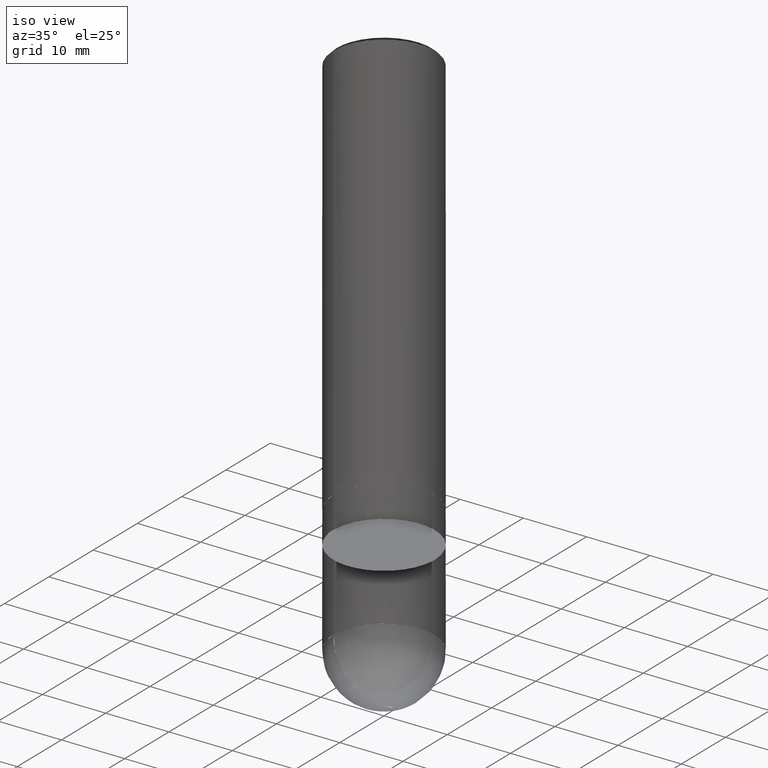
[diagram: clean part render]
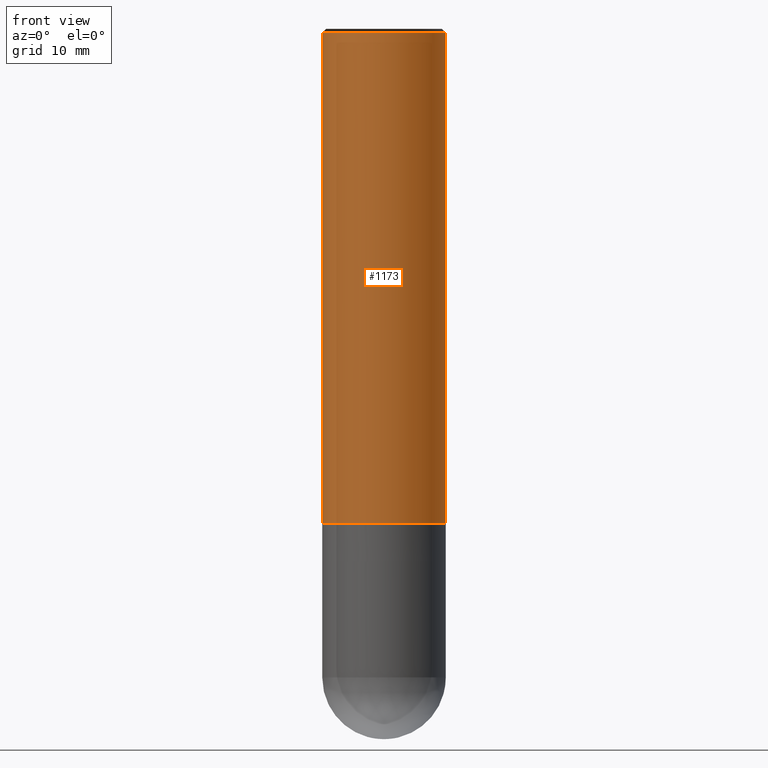
[diagram: tour spotlight — one face highlighted and labeled with its STEP entity id]
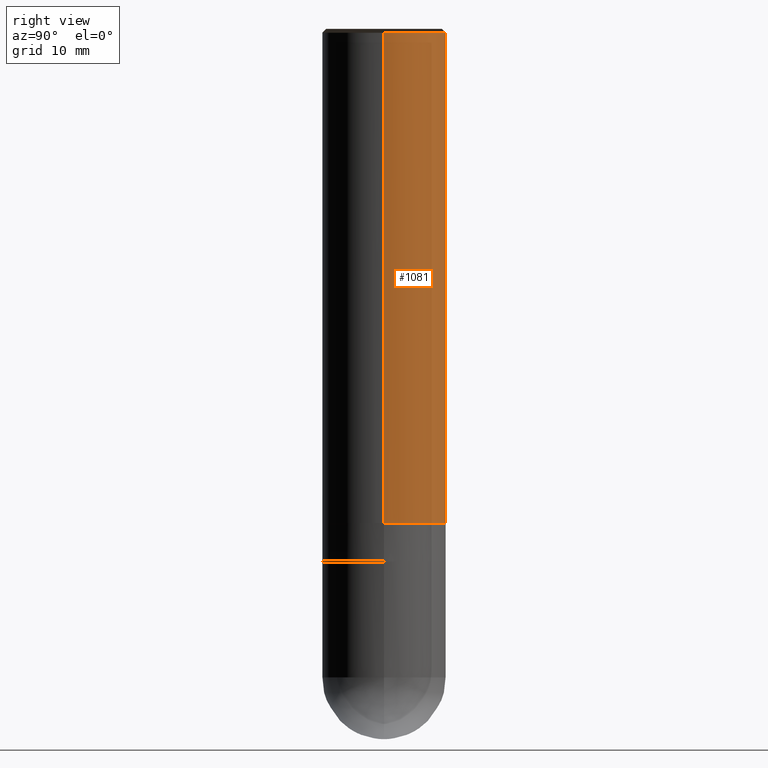
[diagram: tour spotlight — one face highlighted and labeled with its STEP entity id]
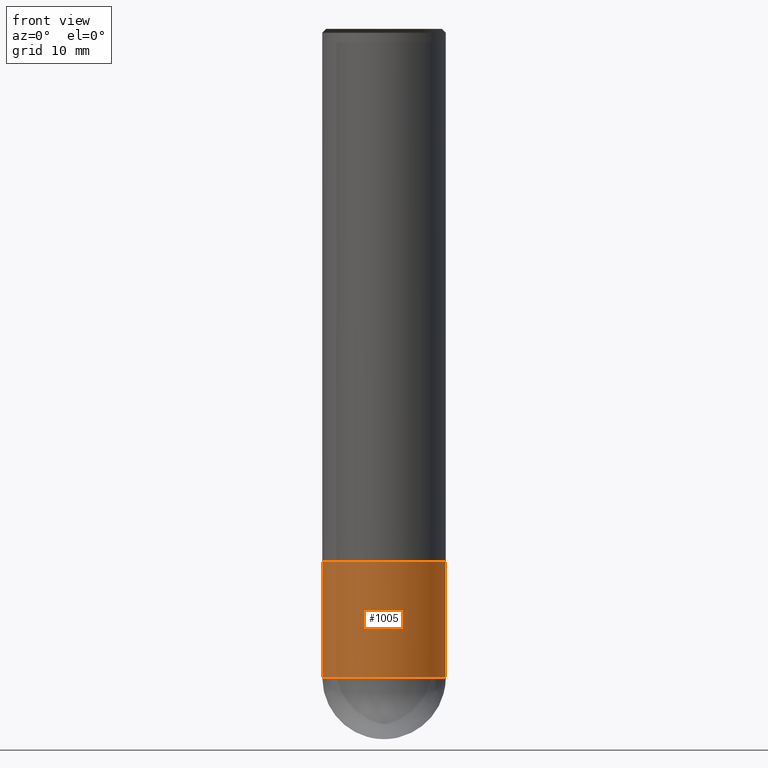
[diagram: tour spotlight — one face highlighted and labeled with its STEP entity id]
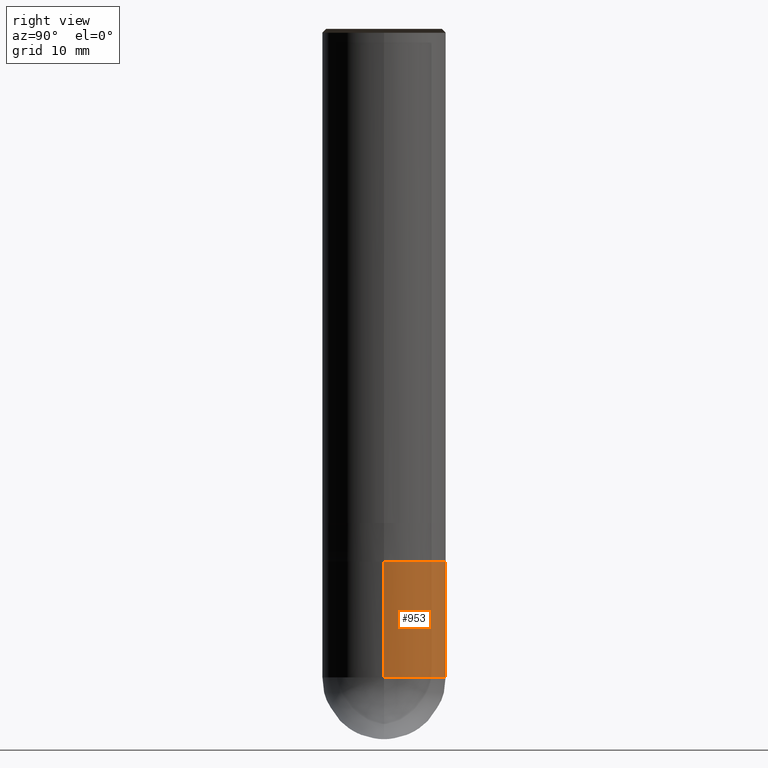
[diagram: tour spotlight — one face highlighted and labeled with its STEP entity id]
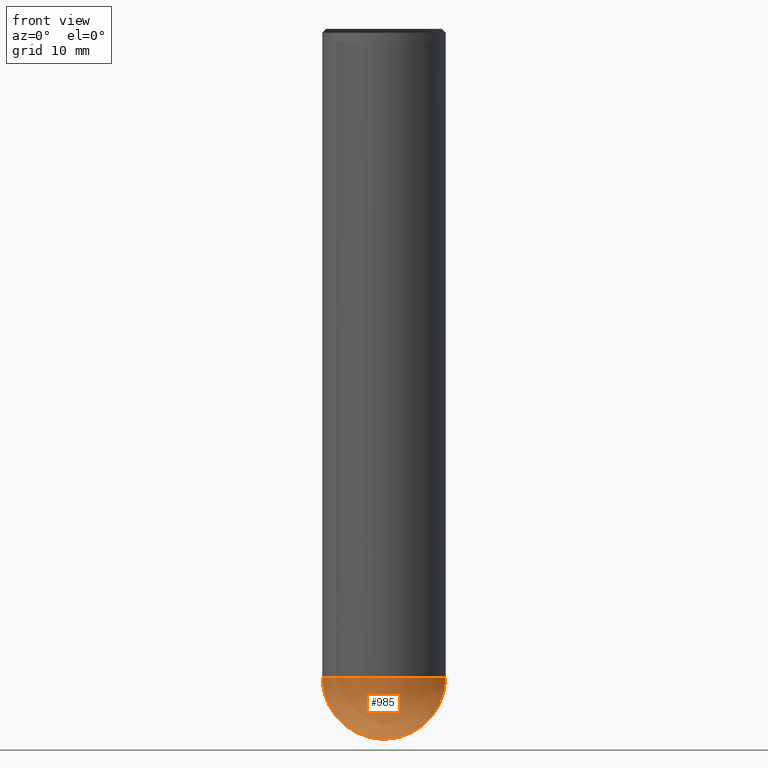
[diagram: tour spotlight — one face highlighted and labeled with its STEP entity id]
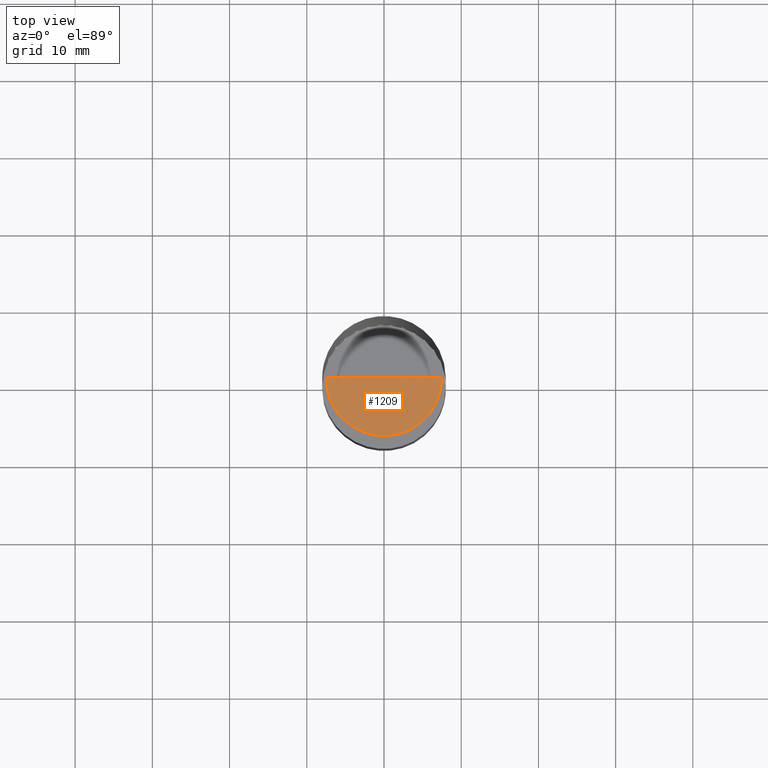
[diagram: tour spotlight — one face highlighted and labeled with its STEP entity id]
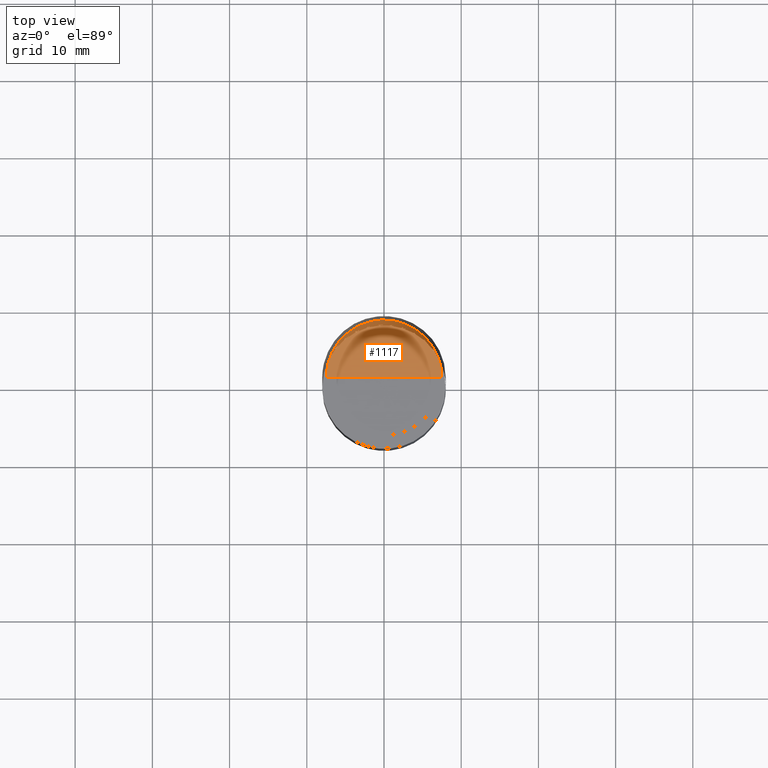
[diagram: tour spotlight — one face highlighted and labeled with its STEP entity id]
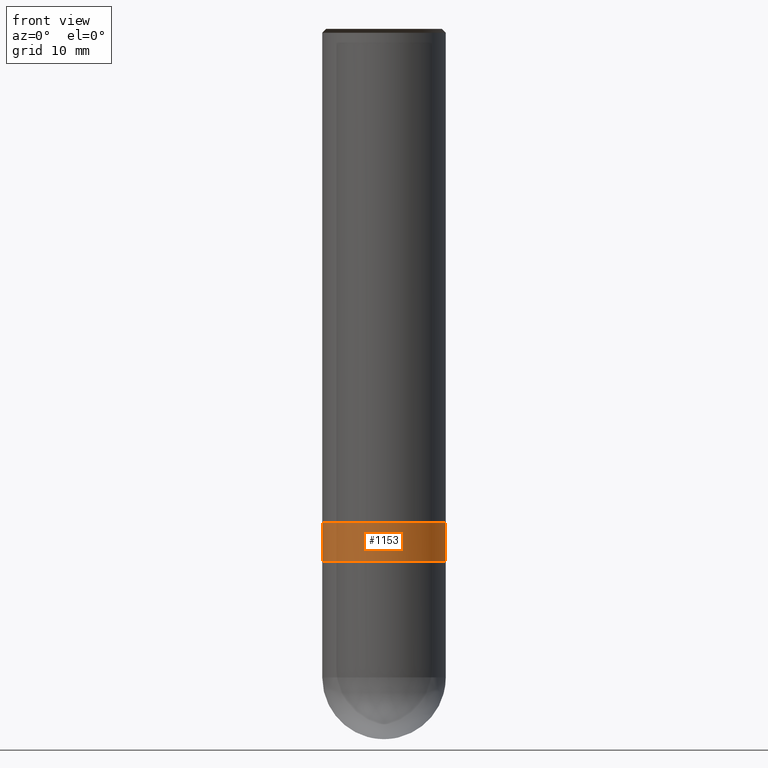
[diagram: tour spotlight — one face highlighted and labeled with its STEP entity id]
A machine part: a face-by-face anatomy tour. The part has 16 B-rep faces; the first image is the clean iso view, then the 8 largest visible faces are spotlighted one at a time (largest first), each with its STEP entity span.

Face 1 — front view, entity #1173. In plain terms, the highlighted face is a freeform B-spline surface patch.
Definition (entity closure, byte-faithful):
#886=CARTESIAN_POINT('',(8.0,0.0,0.0));
#890=CARTESIAN_POINT('',(-8.0,0.0,0.0));
#891=CARTESIAN_POINT('',(8.0,0.0,63.5));
#895=CARTESIAN_POINT('',(-8.0,0.0,63.5));
#902=CARTESIAN_POINT('',(-8.0,-8.0,0.0));
#903=CARTESIAN_POINT('',(0.0,-8.0,0.0));
#904=CARTESIAN_POINT('',(8.0,-8.0,0.0));
#905=CARTESIAN_POINT('',(-8.0,-8.0,63.5));
#906=CARTESIAN_POINT('',(0.0,-8.0,63.5));
#907=CARTESIAN_POINT('',(8.0,-8.0,63.5));
#1154=(
BOUNDED_SURFACE()
B_SPLINE_SURFACE(1,2,(
(#890,#902,#903,#904,#886),
(#895,#905,#906,#907,#891)
), .UNSPECIFIED.,.F.,.F.,.F.)
B_SPLINE_SURFACE_WITH_KNOTS((2,2),(3,2,3),(
0.0,1.0),(
0.0,0.5,1.0), .UNSPECIFIED.)
GEOMETRIC_REPRESENTATION_ITEM()
RATIONAL_B_SPLINE_SURFACE(((1.0,0.707106781187,1.0,0.707106781187,1.0),
(1.0,0.707106781187,1.0,0.707106781187,1.0)
))
REPRESENTATION_ITEM('')
SURFACE()
);
#1155=(
BOUNDED_CURVE()
B_SPLINE_CURVE(2,(#886,#904,#903,#902,#890),.UNSPECIFIED.,.F.,.F.)
B_SPLINE_CURVE_WITH_KNOTS((3,2,3),
(0.0,0.5,1.0),.UNSPECIFIED.)
CURVE()
GEOMETRIC_REPRESENTATION_ITEM()
RATIONAL_B_SPLINE_CURVE((1.0,0.707106781187,1.0,0.707106781187,1.0))
REPRESENTATION_ITEM('')
);
#1156=(
BOUNDED_CURVE()
B_SPLINE_CURVE(1,(#890,#895),.UNSPECIFIED.,.F.,.F.)
B_SPLINE_CURVE_WITH_KNOTS((2,2),
(0.0,1.0),.UNSPECIFIED.)
CURVE()
GEOMETRIC_REPRESENTATION_ITEM()
RATIONAL_B_SPLINE_CURVE((1.0,1.0))
REPRESENTATION_ITEM('')
);
#1157=(
BOUNDED_CURVE()
B_SPLINE_CURVE(2,(#895,#905,#906,#907,#891),.UNSPECIFIED.,.F.,.F.)
B_SPLINE_CURVE_WITH_KNOTS((3,2,3),
(0.0,0.5,1.0),.UNSPECIFIED.)
CURVE()
GEOMETRIC_REPRESENTATION_ITEM()
RATIONAL_B_SPLINE_CURVE((1.0,0.707106781187,1.0,0.707106781187,1.0))
REPRESENTATION_ITEM('')
);
#1158=(
BOUNDED_CURVE()
B_SPLINE_CURVE(1,(#891,#886),.UNSPECIFIED.,.F.,.F.)
B_SPLINE_CURVE_WITH_KNOTS((2,2),
(0.0,1.0),.UNSPECIFIED.)
CURVE()
GEOMETRIC_REPRESENTATION_ITEM()
RATIONAL_B_SPLINE_CURVE((1.0,1.0))
REPRESENTATION_ITEM('')
);
#1159=VERTEX_POINT('',#886);
#1160=VERTEX_POINT('',#890);
#1161=VERTEX_POINT('',#891);
#1162=VERTEX_POINT('',#895);
#1163=EDGE_CURVE('',#1159,#1160,#1155,.T.);
#1164=EDGE_CURVE('',#1160,#1162,#1156,.T.);
#1165=EDGE_CURVE('',#1162,#1161,#1157,.T.);
#1166=EDGE_CURVE('',#1161,#1159,#1158,.T.);
#1167=ORIENTED_EDGE('',*,*,#1163,.T.);
#1168=ORIENTED_EDGE('',*,*,#1164,.T.);
#1169=ORIENTED_EDGE('',*,*,#1165,.T.);
#1170=ORIENTED_EDGE('',*,*,#1166,.T.);
#1171=EDGE_LOOP('',(#1167,#1168,#1169,#1170));
#1172=FACE_OUTER_BOUND('',#1171,.T.);
#1173=ADVANCED_FACE('',(#1172),#1154,.T.);

Face 2 — right view, entity #1081. In plain terms, the highlighted face is a freeform B-spline surface patch.
Definition (entity closure, byte-faithful):
#886=CARTESIAN_POINT('',(8.0,0.0,0.0));
#887=CARTESIAN_POINT('',(8.0,8.0,0.0));
#888=CARTESIAN_POINT('',(0.0,8.0,0.0));
#889=CARTESIAN_POINT('',(-8.0,8.0,0.0));
#890=CARTESIAN_POINT('',(-8.0,0.0,0.0));
#891=CARTESIAN_POINT('',(8.0,0.0,63.5));
#892=CARTESIAN_POINT('',(8.0,8.0,63.5));
#893=CARTESIAN_POINT('',(0.0,8.0,63.5));
#894=CARTESIAN_POINT('',(-8.0,8.0,63.5));
#895=CARTESIAN_POINT('',(-8.0,0.0,63.5));
#1062=(
BOUNDED_SURFACE()
B_SPLINE_SURFACE(1,2,(
(#886,#887,#888,#889,#890),
(#891,#892,#893,#894,#895)
), .UNSPECIFIED.,.F.,.F.,.F.)
B_SPLINE_SURFACE_WITH_KNOTS((2,2),(3,2,3),(
0.0,1.0),(
0.0,0.5,1.0), .UNSPECIFIED.)
GEOMETRIC_REPRESENTATION_ITEM()
RATIONAL_B_SPLINE_SURFACE(((1.0,0.707106781187,1.0,0.707106781187,1.0),
(1.0,0.707106781187,1.0,0.707106781187,1.0)
))
REPRESENTATION_ITEM('')
SURFACE()
);
#1063=(
BOUNDED_CURVE()
B_SPLINE_CURVE(2,(#890,#889,#888,#887,#886),.UNSPECIFIED.,.F.,.F.)
B_SPLINE_CURVE_WITH_KNOTS((3,2,3),
(0.0,0.5,1.0),.UNSPECIFIED.)
CURVE()
GEOMETRIC_REPRESENTATION_ITEM()
RATIONAL_B_SPLINE_CURVE((1.0,0.707106781187,1.0,0.707106781187,1.0))
REPRESENTATION_ITEM('')
);
#1064=(
BOUNDED_CURVE()
B_SPLINE_CURVE(1,(#886,#891),.UNSPECIFIED.,.F.,.F.)
B_SPLINE_CURVE_WITH_KNOTS((2,2),
(0.0,1.0),.UNSPECIFIED.)
CURVE()
GEOMETRIC_REPRESENTATION_ITEM()
RATIONAL_B_SPLINE_CURVE((1.0,1.0))
REPRESENTATION_ITEM('')
);
#1065=(
BOUNDED_CURVE()
B_SPLINE_CURVE(2,(#891,#892,#893,#894,#895),.UNSPECIFIED.,.F.,.F.)
B_SPLINE_CURVE_WITH_KNOTS((3,2,3),
(0.0,0.5,1.0),.UNSPECIFIED.)
CURVE()
GEOMETRIC_REPRESENTATION_ITEM()
RATIONAL_B_SPLINE_CURVE((1.0,0.707106781187,1.0,0.707106781187,1.0))
REPRESENTATION_ITEM('')
);
#1066=(
BOUNDED_CURVE()
B_SPLINE_CURVE(1,(#895,#890),.UNSPECIFIED.,.F.,.F.)
B_SPLINE_CURVE_WITH_KNOTS((2,2),
(0.0,1.0),.UNSPECIFIED.)
CURVE()
GEOMETRIC_REPRESENTATION_ITEM()
RATIONAL_B_SPLINE_CURVE((1.0,1.0))
REPRESENTATION_ITEM('')
);
#1067=VERTEX_POINT('',#886);
#1068=VERTEX_POINT('',#890);
#1069=VERTEX_POINT('',#891);
#1070=VERTEX_POINT('',#895);
#1071=EDGE_CURVE('',#1068,#1067,#1063,.T.);
#1072=EDGE_CURVE('',#1067,#1069,#1064,.T.);
#1073=EDGE_CURVE('',#1069,#1070,#1065,.T.);
#1074=EDGE_CURVE('',#1070,#1068,#1066,.T.);
#1075=ORIENTED_EDGE('',*,*,#1071,.T.);
#1076=ORIENTED_EDGE('',*,*,#1072,.T.);
#1077=ORIENTED_EDGE('',*,*,#1073,.T.);
#1078=ORIENTED_EDGE('',*,*,#1074,.T.);
#1079=EDGE_LOOP('',(#1075,#1076,#1077,#1078));
#1080=FACE_OUTER_BOUND('',#1079,.T.);
#1081=ADVANCED_FACE('',(#1080),#1062,.T.);

Face 3 — front view, entity #1005. In plain terms, the highlighted face is a freeform B-spline surface patch.
Definition (entity closure, byte-faithful):
#866=CARTESIAN_POINT('',(8.0,0.0,-20.0));
#870=CARTESIAN_POINT('',(-8.0,0.0,-20.0));
#871=CARTESIAN_POINT('',(8.0,0.0,-5.0));
#875=CARTESIAN_POINT('',(-8.0,0.0,-5.0));
#880=CARTESIAN_POINT('',(-8.0,-8.0,-20.0));
#881=CARTESIAN_POINT('',(0.0,-8.0,-20.0));
#882=CARTESIAN_POINT('',(8.0,-8.0,-20.0));
#883=CARTESIAN_POINT('',(-8.0,-8.0,-5.0));
#884=CARTESIAN_POINT('',(0.0,-8.0,-5.0));
#885=CARTESIAN_POINT('',(8.0,-8.0,-5.0));
#986=(
BOUNDED_SURFACE()
B_SPLINE_SURFACE(1,2,(
(#870,#880,#881,#882,#866),
(#875,#883,#884,#885,#871)
), .UNSPECIFIED.,.F.,.F.,.F.)
B_SPLINE_SURFACE_WITH_KNOTS((2,2),(3,2,3),(
0.0,1.0),(
0.0,0.5,1.0), .UNSPECIFIED.)
GEOMETRIC_REPRESENTATION_ITEM()
RATIONAL_B_SPLINE_SURFACE(((1.0,0.707106781187,1.0,0.707106781187,1.0),
(1.0,0.707106781187,1.0,0.707106781187,1.0)
))
REPRESENTATION_ITEM('')
SURFACE()
);
#987=(
BOUNDED_CURVE()
B_SPLINE_CURVE(2,(#866,#882,#881,#880,#870),.UNSPECIFIED.,.F.,.F.)
B_SPLINE_CURVE_WITH_KNOTS((3,2,3),
(0.0,0.5,1.0),.UNSPECIFIED.)
CURVE()
GEOMETRIC_REPRESENTATION_ITEM()
RATIONAL_B_SPLINE_CURVE((1.0,0.707106781187,1.0,0.707106781187,1.0))
REPRESENTATION_ITEM('')
);
#988=(
BOUNDED_CURVE()
B_SPLINE_CURVE(1,(#870,#875),.UNSPECIFIED.,.F.,.F.)
B_SPLINE_CURVE_WITH_KNOTS((2,2),
(0.0,1.0),.UNSPECIFIED.)
CURVE()
GEOMETRIC_REPRESENTATION_ITEM()
RATIONAL_B_SPLINE_CURVE((1.0,1.0))
REPRESENTATION_ITEM('')
);
#989=(
BOUNDED_CURVE()
B_SPLINE_CURVE(2,(#875,#883,#884,#885,#871),.UNSPECIFIED.,.F.,.F.)
B_SPLINE_CURVE_WITH_KNOTS((3,2,3),
(0.0,0.5,1.0),.UNSPECIFIED.)
CURVE()
GEOMETRIC_REPRESENTATION_ITEM()
RATIONAL_B_SPLINE_CURVE((1.0,0.707106781187,1.0,0.707106781187,1.0))
REPRESENTATION_ITEM('')
);
#990=(
BOUNDED_CURVE()
B_SPLINE_CURVE(1,(#871,#866),.UNSPECIFIED.,.F.,.F.)
B_SPLINE_CURVE_WITH_KNOTS((2,2),
(0.0,1.0),.UNSPECIFIED.)
CURVE()
GEOMETRIC_REPRESENTATION_ITEM()
RATIONAL_B_SPLINE_CURVE((1.0,1.0))
REPRESENTATION_ITEM('')
);
#991=VERTEX_POINT('',#866);
#992=VERTEX_POINT('',#870);
#993=VERTEX_POINT('',#871);
#994=VERTEX_POINT('',#875);
#995=EDGE_CURVE('',#991,#992,#987,.T.);
#996=EDGE_CURVE('',#992,#994,#988,.T.);
#997=EDGE_CURVE('',#994,#993,#989,.T.);
#998=EDGE_CURVE('',#993,#991,#990,.T.);
#999=ORIENTED_EDGE('',*,*,#995,.T.);
#1000=ORIENTED_EDGE('',*,*,#996,.T.);
#1001=ORIENTED_EDGE('',*,*,#997,.T.);
#1002=ORIENTED_EDGE('',*,*,#998,.T.);
#1003=EDGE_LOOP('',(#999,#1000,#1001,#1002));
#1004=FACE_OUTER_BOUND('',#1003,.T.);
#1005=ADVANCED_FACE('',(#1004),#986,.T.);

Face 4 — right view, entity #953. In plain terms, the highlighted face is a freeform B-spline surface patch.
Definition (entity closure, byte-faithful):
#866=CARTESIAN_POINT('',(8.0,0.0,-20.0));
#867=CARTESIAN_POINT('',(8.0,8.0,-20.0));
#868=CARTESIAN_POINT('',(0.0,8.0,-20.0));
#869=CARTESIAN_POINT('',(-8.0,8.0,-20.0));
#870=CARTESIAN_POINT('',(-8.0,0.0,-20.0));
#871=CARTESIAN_POINT('',(8.0,0.0,-5.0));
#872=CARTESIAN_POINT('',(8.0,8.0,-5.0));
#873=CARTESIAN_POINT('',(0.0,8.0,-5.0));
#874=CARTESIAN_POINT('',(-8.0,8.0,-5.0));
#875=CARTESIAN_POINT('',(-8.0,0.0,-5.0));
#934=(
BOUNDED_SURFACE()
B_SPLINE_SURFACE(1,2,(
(#866,#867,#868,#869,#870),
(#871,#872,#873,#874,#875)
), .UNSPECIFIED.,.F.,.F.,.F.)
B_SPLINE_SURFACE_WITH_KNOTS((2,2),(3,2,3),(
0.0,1.0),(
0.0,0.5,1.0), .UNSPECIFIED.)
GEOMETRIC_REPRESENTATION_ITEM()
RATIONAL_B_SPLINE_SURFACE(((1.0,0.707106781187,1.0,0.707106781187,1.0),
(1.0,0.707106781187,1.0,0.707106781187,1.0)
))
REPRESENTATION_ITEM('')
SURFACE()
);
#935=(
BOUNDED_CURVE()
B_SPLINE_CURVE(2,(#870,#869,#868,#867,#866),.UNSPECIFIED.,.F.,.F.)
B_SPLINE_CURVE_WITH_KNOTS((3,2,3),
(0.0,0.5,1.0),.UNSPECIFIED.)
CURVE()
GEOMETRIC_REPRESENTATION_ITEM()
RATIONAL_B_SPLINE_CURVE((1.0,0.707106781187,1.0,0.707106781187,1.0))
REPRESENTATION_ITEM('')
);
#936=(
BOUNDED_CURVE()
B_SPLINE_CURVE(1,(#866,#871),.UNSPECIFIED.,.F.,.F.)
B_SPLINE_CURVE_WITH_KNOTS((2,2),
(0.0,1.0),.UNSPECIFIED.)
CURVE()
GEOMETRIC_REPRESENTATION_ITEM()
RATIONAL_B_SPLINE_CURVE((1.0,1.0))
REPRESENTATION_ITEM('')
);
#937=(
BOUNDED_CURVE()
B_SPLINE_CURVE(2,(#871,#872,#873,#874,#875),.UNSPECIFIED.,.F.,.F.)
B_SPLINE_CURVE_WITH_KNOTS((3,2,3),
(0.0,0.5,1.0),.UNSPECIFIED.)
CURVE()
GEOMETRIC_REPRESENTATION_ITEM()
RATIONAL_B_SPLINE_CURVE((1.0,0.707106781187,1.0,0.707106781187,1.0))
REPRESENTATION_ITEM('')
);
#938=(
BOUNDED_CURVE()
B_SPLINE_CURVE(1,(#875,#870),.UNSPECIFIED.,.F.,.F.)
B_SPLINE_CURVE_WITH_KNOTS((2,2),
(0.0,1.0),.UNSPECIFIED.)
CURVE()
GEOMETRIC_REPRESENTATION_ITEM()
RATIONAL_B_SPLINE_CURVE((1.0,1.0))
REPRESENTATION_ITEM('')
);
#939=VERTEX_POINT('',#866);
#940=VERTEX_POINT('',#870);
#941=VERTEX_POINT('',#871);
#942=VERTEX_POINT('',#875);
#943=EDGE_CURVE('',#940,#939,#935,.T.);
#944=EDGE_CURVE('',#939,#941,#936,.T.);
#945=EDGE_CURVE('',#941,#942,#937,.T.);
#946=EDGE_CURVE('',#942,#940,#938,.T.);
#947=ORIENTED_EDGE('',*,*,#943,.T.);
#948=ORIENTED_EDGE('',*,*,#944,.T.);
#949=ORIENTED_EDGE('',*,*,#945,.T.);
#950=ORIENTED_EDGE('',*,*,#946,.T.);
#951=EDGE_LOOP('',(#947,#948,#949,#950));
#952=FACE_OUTER_BOUND('',#951,.T.);
#953=ADVANCED_FACE('',(#952),#934,.T.);

Face 5 — front view, entity #985. In plain terms, the highlighted face is a freeform B-spline surface patch.
Definition (entity closure, byte-faithful):
#860=CARTESIAN_POINT('',(0.0,0.0,-28.0));
#861=CARTESIAN_POINT('',(8.0,0.0,-28.0));
#865=CARTESIAN_POINT('',(-8.0,0.0,-28.0));
#866=CARTESIAN_POINT('',(8.0,0.0,-20.0));
#870=CARTESIAN_POINT('',(-8.0,0.0,-20.0));
#877=CARTESIAN_POINT('',(-8.0,-8.0,-28.0));
#878=CARTESIAN_POINT('',(0.0,-8.0,-28.0));
#879=CARTESIAN_POINT('',(8.0,-8.0,-28.0));
#880=CARTESIAN_POINT('',(-8.0,-8.0,-20.0));
#881=CARTESIAN_POINT('',(0.0,-8.0,-20.0));
#882=CARTESIAN_POINT('',(8.0,-8.0,-20.0));
#970=(
BOUNDED_SURFACE()
B_SPLINE_SURFACE(2,2,(
(#860,#860,#860,#860,#860),
(#865,#877,#878,#879,#861),
(#870,#880,#881,#882,#866)
), .UNSPECIFIED.,.F.,.F.,.F.)
B_SPLINE_SURFACE_WITH_KNOTS((3,3),(3,2,3),(
0.0,1.0),(
0.0,0.5,1.0), .UNSPECIFIED.)
GEOMETRIC_REPRESENTATION_ITEM()
RATIONAL_B_SPLINE_SURFACE(((1.0,0.707106781187,1.0,0.707106781187,1.0),
(0.707106781187,0.5,0.707106781187,0.5,0.707106781187),
(1.0,0.707106781187,1.0,0.707106781187,1.0)
))
REPRESENTATION_ITEM('')
SURFACE()
);
#971=(
BOUNDED_CURVE()
B_SPLINE_CURVE(2,(#866,#861,#860),.UNSPECIFIED.,.F.,.F.)
B_SPLINE_CURVE_WITH_KNOTS((3,3),
(0.0,1.0),.UNSPECIFIED.)
CURVE()
GEOMETRIC_REPRESENTATION_ITEM()
RATIONAL_B_SPLINE_CURVE((1.0,0.707106781187,1.0))
REPRESENTATION_ITEM('')
);
#972=(
BOUNDED_CURVE()
B_SPLINE_CURVE(2,(#860,#865,#870),.UNSPECIFIED.,.F.,.F.)
B_SPLINE_CURVE_WITH_KNOTS((3,3),
(0.0,1.0),.UNSPECIFIED.)
CURVE()
GEOMETRIC_REPRESENTATION_ITEM()
RATIONAL_B_SPLINE_CURVE((1.0,0.707106781187,1.0))
REPRESENTATION_ITEM('')
);
#973=(
BOUNDED_CURVE()
B_SPLINE_CURVE(2,(#870,#880,#881,#882,#866),.UNSPECIFIED.,.F.,.F.)
B_SPLINE_CURVE_WITH_KNOTS((3,2,3),
(0.0,0.5,1.0),.UNSPECIFIED.)
CURVE()
GEOMETRIC_REPRESENTATION_ITEM()
RATIONAL_B_SPLINE_CURVE((1.0,0.707106781187,1.0,0.707106781187,1.0))
REPRESENTATION_ITEM('')
);
#974=VERTEX_POINT('',#860);
#975=VERTEX_POINT('',#866);
#976=VERTEX_POINT('',#870);
#977=EDGE_CURVE('',#975,#974,#971,.T.);
#978=EDGE_CURVE('',#974,#976,#972,.T.);
#979=EDGE_CURVE('',#976,#975,#973,.T.);
#980=ORIENTED_EDGE('',*,*,#977,.T.);
#981=ORIENTED_EDGE('',*,*,#978,.T.);
#982=ORIENTED_EDGE('',*,*,#979,.T.);
#983=EDGE_LOOP('',(#980,#981,#982));
#984=FACE_OUTER_BOUND('',#983,.T.);
#985=ADVANCED_FACE('',(#984),#970,.T.);

Face 6 — top view, entity #1209. In plain terms, the highlighted face is a freeform B-spline surface patch.
Definition (entity closure, byte-faithful):
#896=CARTESIAN_POINT('',(7.5,0.0,64.0));
#900=CARTESIAN_POINT('',(-7.5,0.0,64.0));
#901=CARTESIAN_POINT('',(0.0,0.0,64.0));
#908=CARTESIAN_POINT('',(-7.5,-7.5,64.0));
#909=CARTESIAN_POINT('',(0.0,-7.5,64.0));
#910=CARTESIAN_POINT('',(7.5,-7.5,64.0));
#1194=(
BOUNDED_SURFACE()
B_SPLINE_SURFACE(1,2,(
(#900,#908,#909,#910,#896),
(#901,#901,#901,#901,#901)
), .UNSPECIFIED.,.F.,.F.,.F.)
B_SPLINE_SURFACE_WITH_KNOTS((2,2),(3,2,3),(
0.0,1.0),(
0.0,0.5,1.0), .UNSPECIFIED.)
GEOMETRIC_REPRESENTATION_ITEM()
RATIONAL_B_SPLINE_SURFACE(((1.0,0.707106781187,1.0,0.707106781187,1.0),
(1.0,0.707106781187,1.0,0.707106781187,1.0)
))
REPRESENTATION_ITEM('')
SURFACE()
);
#1195=(
BOUNDED_CURVE()
B_SPLINE_CURVE(2,(#896,#910,#909,#908,#900),.UNSPECIFIED.,.F.,.F.)
B_SPLINE_CURVE_WITH_KNOTS((3,2,3),
(0.0,0.5,1.0),.UNSPECIFIED.)
CURVE()
GEOMETRIC_REPRESENTATION_ITEM()
RATIONAL_B_SPLINE_CURVE((1.0,0.707106781187,1.0,0.707106781187,1.0))
REPRESENTATION_ITEM('')
);
#1196=(
BOUNDED_CURVE()
B_SPLINE_CURVE(1,(#900,#901),.UNSPECIFIED.,.F.,.F.)
B_SPLINE_CURVE_WITH_KNOTS((2,2),
(0.0,1.0),.UNSPECIFIED.)
CURVE()
GEOMETRIC_REPRESENTATION_ITEM()
RATIONAL_B_SPLINE_CURVE((1.0,1.0))
REPRESENTATION_ITEM('')
);
#1197=(
BOUNDED_CURVE()
B_SPLINE_CURVE(1,(#901,#896),.UNSPECIFIED.,.F.,.F.)
B_SPLINE_CURVE_WITH_KNOTS((2,2),
(0.0,1.0),.UNSPECIFIED.)
CURVE()
GEOMETRIC_REPRESENTATION_ITEM()
RATIONAL_B_SPLINE_CURVE((1.0,1.0))
REPRESENTATION_ITEM('')
);
#1198=VERTEX_POINT('',#896);
#1199=VERTEX_POINT('',#900);
#1200=VERTEX_POINT('',#901);
#1201=EDGE_CURVE('',#1198,#1199,#1195,.T.);
#1202=EDGE_CURVE('',#1199,#1200,#1196,.T.);
#1203=EDGE_CURVE('',#1200,#1198,#1197,.T.);
#1204=ORIENTED_EDGE('',*,*,#1201,.T.);
#1205=ORIENTED_EDGE('',*,*,#1202,.T.);
#1206=ORIENTED_EDGE('',*,*,#1203,.T.);
#1207=EDGE_LOOP('',(#1204,#1205,#1206));
#1208=FACE_OUTER_BOUND('',#1207,.T.);
#1209=ADVANCED_FACE('',(#1208),#1194,.T.);

Face 7 — top view, entity #1117. In plain terms, the highlighted face is a freeform B-spline surface patch.
Definition (entity closure, byte-faithful):
#896=CARTESIAN_POINT('',(7.5,0.0,64.0));
#897=CARTESIAN_POINT('',(7.5,7.5,64.0));
#898=CARTESIAN_POINT('',(0.0,7.5,64.0));
#899=CARTESIAN_POINT('',(-7.5,7.5,64.0));
#900=CARTESIAN_POINT('',(-7.5,0.0,64.0));
#901=CARTESIAN_POINT('',(0.0,0.0,64.0));
#1102=(
BOUNDED_SURFACE()
B_SPLINE_SURFACE(1,2,(
(#896,#897,#898,#899,#900),
(#901,#901,#901,#901,#901)
), .UNSPECIFIED.,.F.,.F.,.F.)
B_SPLINE_SURFACE_WITH_KNOTS((2,2),(3,2,3),(
0.0,1.0),(
0.0,0.5,1.0), .UNSPECIFIED.)
GEOMETRIC_REPRESENTATION_ITEM()
RATIONAL_B_SPLINE_SURFACE(((1.0,0.707106781187,1.0,0.707106781187,1.0),
(1.0,0.707106781187,1.0,0.707106781187,1.0)
))
REPRESENTATION_ITEM('')
SURFACE()
);
#1103=(
BOUNDED_CURVE()
B_SPLINE_CURVE(2,(#900,#899,#898,#897,#896),.UNSPECIFIED.,.F.,.F.)
B_SPLINE_CURVE_WITH_KNOTS((3,2,3),
(0.0,0.5,1.0),.UNSPECIFIED.)
CURVE()
GEOMETRIC_REPRESENTATION_ITEM()
RATIONAL_B_SPLINE_CURVE((1.0,0.707106781187,1.0,0.707106781187,1.0))
REPRESENTATION_ITEM('')
);
#1104=(
BOUNDED_CURVE()
B_SPLINE_CURVE(1,(#896,#901),.UNSPECIFIED.,.F.,.F.)
B_SPLINE_CURVE_WITH_KNOTS((2,2),
(0.0,1.0),.UNSPECIFIED.)
CURVE()
GEOMETRIC_REPRESENTATION_ITEM()
RATIONAL_B_SPLINE_CURVE((1.0,1.0))
REPRESENTATION_ITEM('')
);
#1105=(
BOUNDED_CURVE()
B_SPLINE_CURVE(1,(#901,#900),.UNSPECIFIED.,.F.,.F.)
B_SPLINE_CURVE_WITH_KNOTS((2,2),
(0.0,1.0),.UNSPECIFIED.)
CURVE()
GEOMETRIC_REPRESENTATION_ITEM()
RATIONAL_B_SPLINE_CURVE((1.0,1.0))
REPRESENTATION_ITEM('')
);
#1106=VERTEX_POINT('',#896);
#1107=VERTEX_POINT('',#900);
#1108=VERTEX_POINT('',#901);
#1109=EDGE_CURVE('',#1107,#1106,#1103,.T.);
#1110=EDGE_CURVE('',#1106,#1108,#1104,.T.);
#1111=EDGE_CURVE('',#1108,#1107,#1105,.T.);
#1112=ORIENTED_EDGE('',*,*,#1109,.T.);
#1113=ORIENTED_EDGE('',*,*,#1110,.T.);
#1114=ORIENTED_EDGE('',*,*,#1111,.T.);
#1115=EDGE_LOOP('',(#1112,#1113,#1114));
#1116=FACE_OUTER_BOUND('',#1115,.T.);
#1117=ADVANCED_FACE('',(#1116),#1102,.T.);

Face 8 — front view, entity #1153. In plain terms, the highlighted face is a freeform B-spline surface patch.
Definition (entity closure, byte-faithful):
#871=CARTESIAN_POINT('',(8.0,0.0,-5.0));
#875=CARTESIAN_POINT('',(-8.0,0.0,-5.0));
#883=CARTESIAN_POINT('',(-8.0,-8.0,-5.0));
#884=CARTESIAN_POINT('',(0.0,-8.0,-5.0));
#885=CARTESIAN_POINT('',(8.0,-8.0,-5.0));
#886=CARTESIAN_POINT('',(8.0,0.0,0.0));
#890=CARTESIAN_POINT('',(-8.0,0.0,0.0));
#902=CARTESIAN_POINT('',(-8.0,-8.0,0.0));
#903=CARTESIAN_POINT('',(0.0,-8.0,0.0));
#904=CARTESIAN_POINT('',(8.0,-8.0,0.0));
#1134=(
BOUNDED_SURFACE()
B_SPLINE_SURFACE(1,2,(
(#875,#883,#884,#885,#871),
(#890,#902,#903,#904,#886)
), .UNSPECIFIED.,.F.,.F.,.F.)
B_SPLINE_SURFACE_WITH_KNOTS((2,2),(3,2,3),(
0.0,1.0),(
0.0,0.5,1.0), .UNSPECIFIED.)
GEOMETRIC_REPRESENTATION_ITEM()
RATIONAL_B_SPLINE_SURFACE(((1.0,0.707106781187,1.0,0.707106781187,1.0),
(1.0,0.707106781187,1.0,0.707106781187,1.0)
))
REPRESENTATION_ITEM('')
SURFACE()
);
#1135=(
BOUNDED_CURVE()
B_SPLINE_CURVE(2,(#871,#885,#884,#883,#875),.UNSPECIFIED.,.F.,.F.)
B_SPLINE_CURVE_WITH_KNOTS((3,2,3),
(0.0,0.5,1.0),.UNSPECIFIED.)
CURVE()
GEOMETRIC_REPRESENTATION_ITEM()
RATIONAL_B_SPLINE_CURVE((1.0,0.707106781187,1.0,0.707106781187,1.0))
REPRESENTATION_ITEM('')
);
#1136=(
BOUNDED_CURVE()
B_SPLINE_CURVE(1,(#875,#890),.UNSPECIFIED.,.F.,.F.)
B_SPLINE_CURVE_WITH_KNOTS((2,2),
(0.0,1.0),.UNSPECIFIED.)
CURVE()
GEOMETRIC_REPRESENTATION_ITEM()
RATIONAL_B_SPLINE_CURVE((1.0,1.0))
REPRESENTATION_ITEM('')
);
#1137=(
BOUNDED_CURVE()
B_SPLINE_CURVE(2,(#890,#902,#903,#904,#886),.UNSPECIFIED.,.F.,.F.)
B_SPLINE_CURVE_WITH_KNOTS((3,2,3),
(0.0,0.5,1.0),.UNSPECIFIED.)
CURVE()
GEOMETRIC_REPRESENTATION_ITEM()
RATIONAL_B_SPLINE_CURVE((1.0,0.707106781187,1.0,0.707106781187,1.0))
REPRESENTATION_ITEM('')
);
#1138=(
BOUNDED_CURVE()
B_SPLINE_CURVE(1,(#886,#871),.UNSPECIFIED.,.F.,.F.)
B_SPLINE_CURVE_WITH_KNOTS((2,2),
(0.0,1.0),.UNSPECIFIED.)
CURVE()
GEOMETRIC_REPRESENTATION_ITEM()
RATIONAL_B_SPLINE_CURVE((1.0,1.0))
REPRESENTATION_ITEM('')
);
#1139=VERTEX_POINT('',#871);
#1140=VERTEX_POINT('',#875);
#1141=VERTEX_POINT('',#886);
#1142=VERTEX_POINT('',#890);
#1143=EDGE_CURVE('',#1139,#1140,#1135,.T.);
#1144=EDGE_CURVE('',#1140,#1142,#1136,.T.);
#1145=EDGE_CURVE('',#1142,#1141,#1137,.T.);
#1146=EDGE_CURVE('',#1141,#1139,#1138,.T.);
#1147=ORIENTED_EDGE('',*,*,#1143,.T.);
#1148=ORIENTED_EDGE('',*,*,#1144,.T.);
#1149=ORIENTED_EDGE('',*,*,#1145,.T.);
#1150=ORIENTED_EDGE('',*,*,#1146,.T.);
#1151=EDGE_LOOP('',(#1147,#1148,#1149,#1150));
#1152=FACE_OUTER_BOUND('',#1151,.T.);
#1153=ADVANCED_FACE('',(#1152),#1134,.T.);